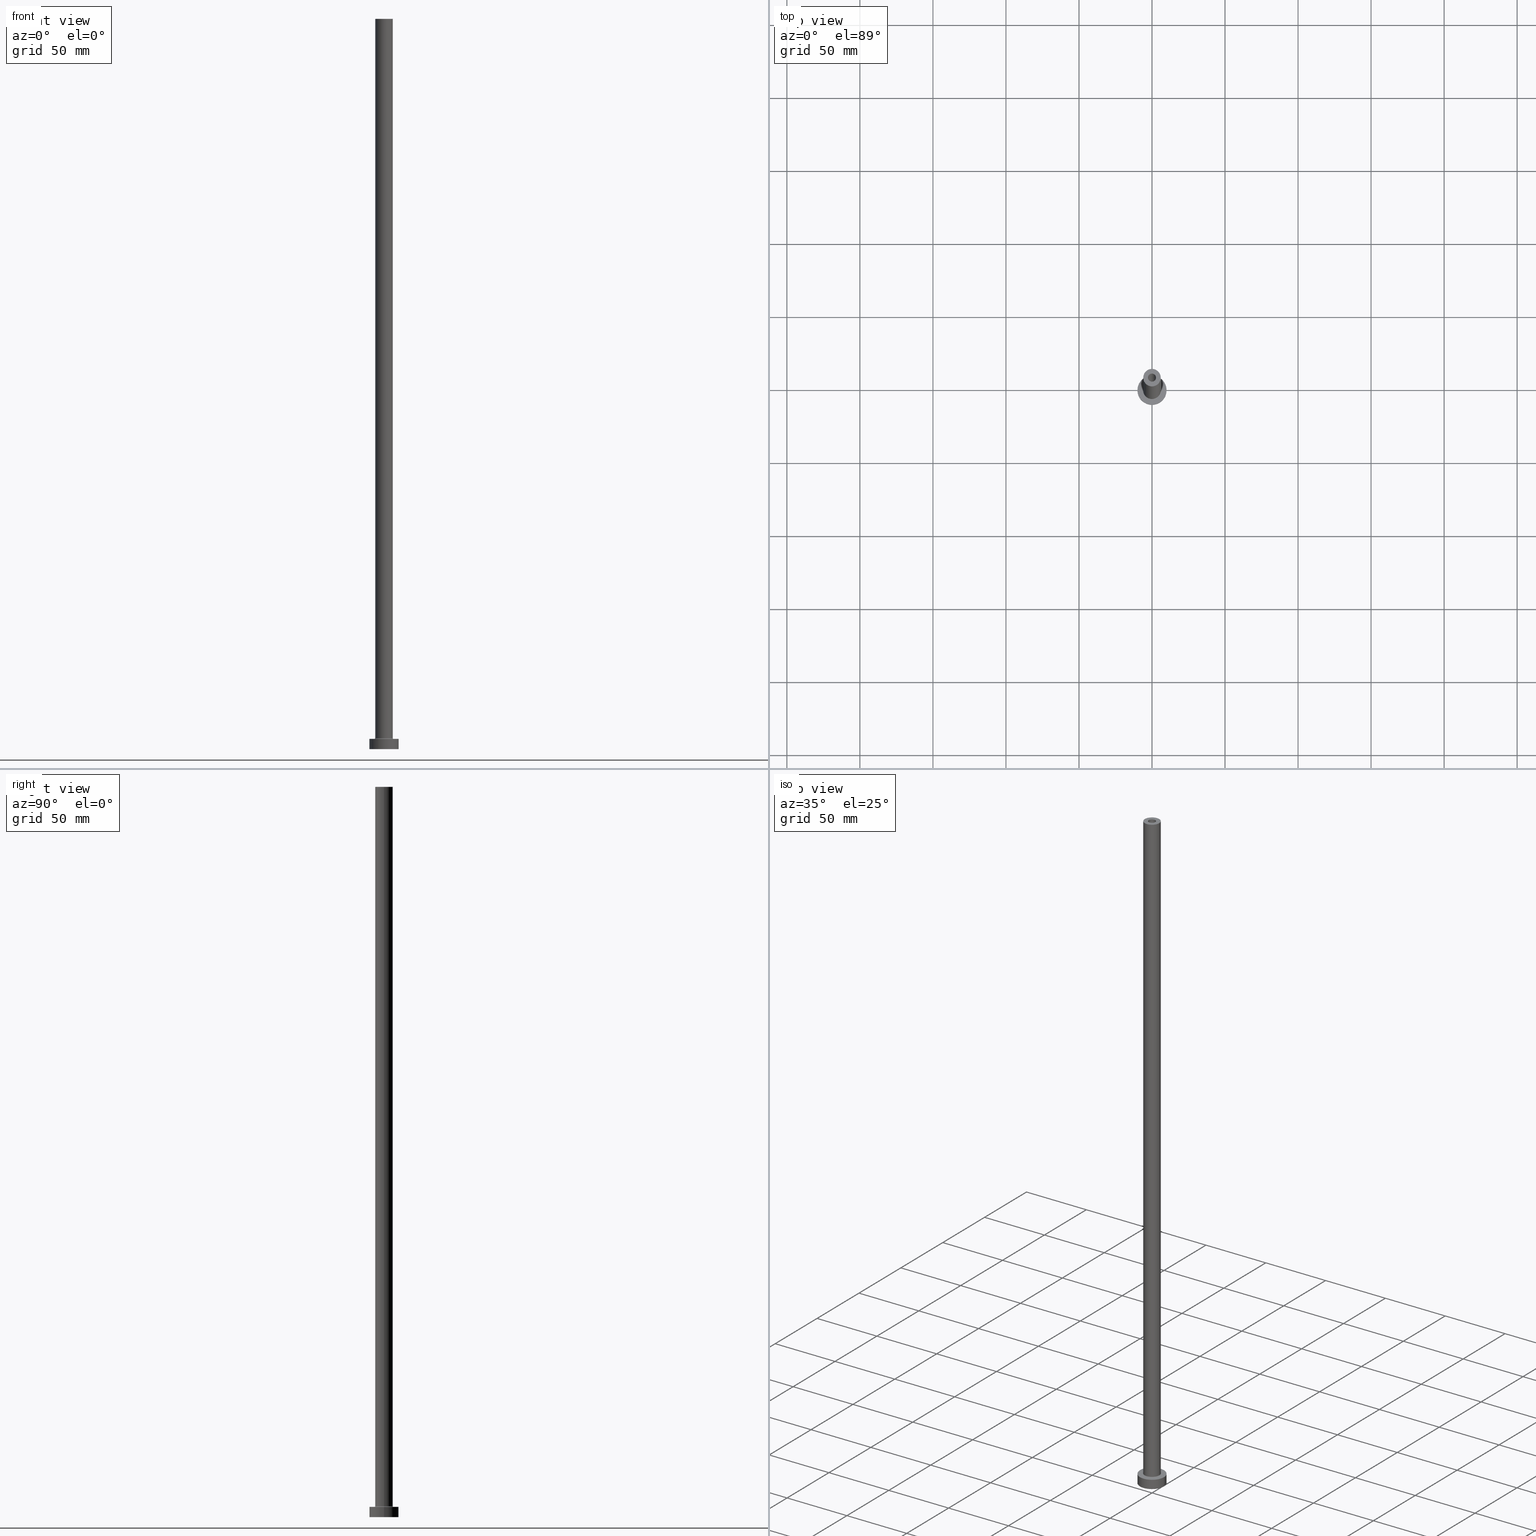
[diagram: canonical four-view strip — front | top / right | iso, engineering-drawing reading convention]
A machine part, canonical four-view strip (front | top / right | iso — engineering-drawing reading convention). The complete STEP part file that produces these views, byte-faithful:
ISO-10303-21;
HEADER;
FILE_DESCRIPTION (( 'STEP AP203' ),
    '1' );
FILE_NAME ('97c2.STEP',
    '2023-02-13T15:53:31',
    ( '' ),
    ( '' ),
    'SwSTEP 2.0',
    'SolidWorks 2019',
    '' );
FILE_SCHEMA (( 'CONFIG_CONTROL_DESIGN' ));
ENDSEC;

DATA;
#1 = CC_DESIGN_PERSON_AND_ORGANIZATION_ASSIGNMENT ( #172, #139, ( #311 ) ) ;
#2 = ORIENTED_EDGE ( 'NONE', *, *, #124, .T. ) ;
#3 = CIRCLE ( 'NONE', #129, 2.750000000000000000 ) ;
#4 = ORIENTED_EDGE ( 'NONE', *, *, #397, .F. ) ;
#5 = APPROVAL_STATUS ( 'not_yet_approved' ) ;
#6 = VERTEX_POINT ( 'NONE', #265 ) ;
#7 = ORIENTED_EDGE ( 'NONE', *, *, #259, .F. ) ;
#8 = AXIS2_PLACEMENT_3D ( 'NONE', #171, #122, #150 ) ;
#9 = VERTEX_POINT ( 'NONE', #407 ) ;
#10 = DIRECTION ( 'NONE',  ( -0.000000000000000000, -0.000000000000000000, -1.000000000000000000 ) ) ;
#11 = ADVANCED_FACE ( 'NONE', ( #92 ), #107, .F. ) ;
#12 = CARTESIAN_POINT ( 'NONE',  ( 6.500000000000000888, 0.000000000000000000, 7.500000000000007105 ) ) ;
#13 = LINE ( 'NONE', #151, #384 ) ;
#14 = DIRECTION ( 'NONE',  ( 0.000000000000000000, 0.000000000000000000, -1.000000000000000000 ) ) ;
#15 = AXIS2_PLACEMENT_3D ( 'NONE', #441, #327, #436 ) ;
#16 = ORIENTED_EDGE ( 'NONE', *, *, #46, .T. ) ;
#17 = DIRECTION ( 'NONE',  ( 1.000000000000000000, 0.000000000000000000, 0.000000000000000000 ) ) ;
#18 = EDGE_CURVE ( 'NONE', #246, #432, #228, .T. ) ;
#19 = PLANE ( 'NONE',  #351 ) ;
#20 = FACE_OUTER_BOUND ( 'NONE', #251, .T. ) ;
#21 = DIRECTION ( 'NONE',  ( -0.000000000000000000, -0.000000000000000000, -1.000000000000000000 ) ) ;
#22 = CYLINDRICAL_SURFACE ( 'NONE', #294, 6.000000000000000888 ) ;
#23 = AXIS2_PLACEMENT_3D ( 'NONE', #235, #312, #272 ) ;
#24 = DIRECTION ( 'NONE',  ( 1.000000000000000000, 0.000000000000000000, 0.000000000000000000 ) ) ;
#25 = CIRCLE ( 'NONE', #8, 6.000000000000000888 ) ;
#26 = CARTESIAN_POINT ( 'NONE',  ( 0.000000000000000000, 0.000000000000000000, 7.000000000000000000 ) ) ;
#27 = PERSON_AND_ORGANIZATION_ROLE ( 'design_owner' ) ;
#28 = FACE_OUTER_BOUND ( 'NONE', #112, .T. ) ;
#29 =( NAMED_UNIT ( * ) SI_UNIT ( $, .STERADIAN. ) SOLID_ANGLE_UNIT ( ) );
#30 = CARTESIAN_POINT ( 'NONE',  ( 0.000000000000000000, 0.000000000000000000, 455.0000000000000000 ) ) ;
#31 = AXIS2_PLACEMENT_3D ( 'NONE', #86, #10, #188 ) ;
#32 = AXIS2_PLACEMENT_3D ( 'NONE', #12, #264, #232 ) ;
#33 = VERTEX_POINT ( 'NONE', #299 ) ;
#34 = EDGE_CURVE ( 'NONE', #9, #6, #323, .T. ) ;
#35 = ADVANCED_BREP_SHAPE_REPRESENTATION ( '97c2', ( #192, #367 ), #449 ) ;
#36 = ORIENTED_EDGE ( 'NONE', *, *, #75, .T. ) ;
#37 = CALENDAR_DATE ( 2023, 13, 2 ) ;
#38 = ORIENTED_EDGE ( 'NONE', *, *, #279, .F. ) ;
#39 = ORIENTED_EDGE ( 'NONE', *, *, #231, .T. ) ;
#40 = LOCAL_TIME ( 16, 53, 31.00000000000000000, #283 ) ;
#41 = ORIENTED_EDGE ( 'NONE', *, *, #259, .T. ) ;
#42 = CALENDAR_DATE ( 2023, 13, 2 ) ;
#43 = ORIENTED_EDGE ( 'NONE', *, *, #131, .F. ) ;
#44 = EDGE_LOOP ( 'NONE', ( #4, #145 ) ) ;
#45 = CARTESIAN_POINT ( 'NONE',  ( 0.000000000000000000, 0.000000000000000000, 7.500000000000007105 ) ) ;
#46 = EDGE_CURVE ( 'NONE', #177, #114, #160, .T. ) ;
#47 = CARTESIAN_POINT ( 'NONE',  ( 2.750000000000000000, 3.367778697655220519E-16, 500.0000000000000000 ) ) ;
#48 = EDGE_LOOP ( 'NONE', ( #253, #154 ) ) ;
#49 = DIRECTION ( 'NONE',  ( -1.000000000000000000, 0.000000000000000000, 0.000000000000000000 ) ) ;
#50 = FACE_BOUND ( 'NONE', #282, .T. ) ;
#51 = CIRCLE ( 'NONE', #309, 2.750000000000000000 ) ;
#52 = EDGE_CURVE ( 'NONE', #6, #9, #118, .T. ) ;
#53 = CARTESIAN_POINT ( 'NONE',  ( -2.750000000000000000, 0.000000000000000000, 455.0000000000000000 ) ) ;
#54 = AXIS2_PLACEMENT_3D ( 'NONE', #227, #233, #158 ) ;
#55 = EDGE_LOOP ( 'NONE', ( #452, #215, #16, #435 ) ) ;
#56 = CARTESIAN_POINT ( 'NONE',  ( 2.899999999999999911, 3.551475717527323339E-16, 455.0000000000000000 ) ) ;
#57 = CARTESIAN_POINT ( 'NONE',  ( 6.000000000000000888, 7.347880794884120722E-16, 500.0000000000000000 ) ) ;
#58 = LINE ( 'NONE', #196, #261 ) ;
#59 = CARTESIAN_POINT ( 'NONE',  ( 0.000000000000000000, 0.000000000000000000, 7.500000000000007105 ) ) ;
#60 = DIRECTION ( 'NONE',  ( 1.000000000000000000, 0.000000000000000000, 0.000000000000000000 ) ) ;
#61 = CIRCLE ( 'NONE', #176, 6.500000000000000888 ) ;
#62 = LINE ( 'NONE', #67, #100 ) ;
#63 = AXIS2_PLACEMENT_3D ( 'NONE', #239, #386, #165 ) ;
#64 = ADVANCED_FACE ( 'NONE', ( #50, #116 ), #19, .T. ) ;
#65 = FACE_BOUND ( 'NONE', #437, .T. ) ;
#66 = APPROVAL_DATE_TIME ( #390, #186 ) ;
#67 = CARTESIAN_POINT ( 'NONE',  ( 2.750000000000000000, 3.367778697655220519E-16, 500.0000000000000000 ) ) ;
#68 = APPROVAL_ROLE ( '' ) ;
#69 = EDGE_CURVE ( 'NONE', #213, #398, #332, .T. ) ;
#70 = AXIS2_PLACEMENT_3D ( 'NONE', #457, #197, #24 ) ;
#71 = ORIENTED_EDGE ( 'NONE', *, *, #52, .T. ) ;
#72 = SHAPE_DEFINITION_REPRESENTATION ( #338, #35 ) ;
#73 = EDGE_LOOP ( 'NONE', ( #178, #289, #394, #210 ) ) ;
#74 = VERTEX_POINT ( 'NONE', #57 ) ;
#75 = EDGE_CURVE ( 'NONE', #98, #391, #13, .T. ) ;
#76 = CC_DESIGN_APPROVAL ( #424, ( #247 ) ) ;
#77 = ORIENTED_EDGE ( 'NONE', *, *, #34, .F. ) ;
#78 = EDGE_LOOP ( 'NONE', ( #38, #278, #2, #395 ) ) ;
#79 = CC_DESIGN_PERSON_AND_ORGANIZATION_ASSIGNMENT ( #347, #138, ( #82 ) ) ;
#80 = CARTESIAN_POINT ( 'NONE',  ( 10.00000000000000000, 1.224646799147353256E-15, 7.000000000000000000 ) ) ;
#81 = APPLICATION_CONTEXT ( 'configuration controlled 3d designs of mechanical parts and assemblies' ) ;
#82 = PRODUCT_DEFINITION_FORMATION_WITH_SPECIFIED_SOURCE ( 'LIBOVOLN�', '', #237, .NOT_KNOWN. ) ;
#83 = CARTESIAN_POINT ( 'NONE',  ( -2.899999999999999911, 0.000000000000000000, 463.2024386617639493 ) ) ;
#84 = CARTESIAN_POINT ( 'NONE',  ( 0.000000000000000000, 0.000000000000000000, 7.500000000000007105 ) ) ;
#85 = LINE ( 'NONE', #83, #200 ) ;
#86 = CARTESIAN_POINT ( 'NONE',  ( 0.000000000000000000, 0.000000000000000000, 7.000000000000000000 ) ) ;
#87 = FACE_BOUND ( 'NONE', #111, .T. ) ;
#88 = DIRECTION ( 'NONE',  ( 0.000000000000000000, 0.000000000000000000, 1.000000000000000000 ) ) ;
#89 = TOROIDAL_SURFACE ( 'NONE', #113, 6.500000000000000888, 0.5000000000000000000 ) ;
#90 = FACE_OUTER_BOUND ( 'NONE', #180, .T. ) ;
#91 = CIRCLE ( 'NONE', #108, 2.899999999999999911 ) ;
#92 = FACE_OUTER_BOUND ( 'NONE', #361, .T. ) ;
#93 = CARTESIAN_POINT ( 'NONE',  ( -10.00000000000000000, 0.000000000000000000, 0.000000000000000000 ) ) ;
#94 = CARTESIAN_POINT ( 'NONE',  ( 2.899999999999999911, 3.551475717527323339E-16, 0.000000000000000000 ) ) ;
#95 = PERSON ( 'NEUR�EN�', 'NEUR�EN�', 'NEUR�EN�', ('NEUR�EN�'), ('NEUR�EN�'), ('NEUR�EN�') ) ;
#96 = EDGE_CURVE ( 'NONE', #6, #246, #126, .T. ) ;
#97 = CYLINDRICAL_SURFACE ( 'NONE', #287, 6.000000000000000888 ) ;
#98 = VERTEX_POINT ( 'NONE', #225 ) ;
#99 =( LENGTH_UNIT ( ) NAMED_UNIT ( * ) SI_UNIT ( .MILLI., .METRE. ) );
#100 = VECTOR ( 'NONE', #461, 1000.000000000000000 ) ;
#101 = DIRECTION ( 'NONE',  ( 1.224646799147353207E-16, 1.000000000000000000, -0.000000000000000000 ) ) ;
#102 = VECTOR ( 'NONE', #413, 1000.000000000000000 ) ;
#103 = PERSON_AND_ORGANIZATION ( #95, #427 ) ;
#104 = DIRECTION ( 'NONE',  ( 1.000000000000000000, 0.000000000000000000, 0.000000000000000000 ) ) ;
#105 = ADVANCED_FACE ( 'NONE', ( #195 ), #121, .F. ) ;
#106 = ORIENTED_EDGE ( 'NONE', *, *, #216, .F. ) ;
#107 = TOROIDAL_SURFACE ( 'NONE', #366, 6.500000000000000888, 0.5000000000000000000 ) ;
#108 = AXIS2_PLACEMENT_3D ( 'NONE', #295, #334, #403 ) ;
#109 = ORIENTED_EDGE ( 'NONE', *, *, #231, .F. ) ;
#110 = EDGE_LOOP ( 'NONE', ( #268, #71 ) ) ;
#111 = EDGE_LOOP ( 'NONE', ( #106, #337 ) ) ;
#112 = EDGE_LOOP ( 'NONE', ( #39, #322 ) ) ;
#113 = AXIS2_PLACEMENT_3D ( 'NONE', #59, #306, #454 ) ;
#114 = VERTEX_POINT ( 'NONE', #376 ) ;
#115 = EDGE_CURVE ( 'NONE', #33, #431, #61, .T. ) ;
#116 = FACE_OUTER_BOUND ( 'NONE', #110, .T. ) ;
#117 = DIRECTION ( 'NONE',  ( 1.000000000000000000, 0.000000000000000000, 0.000000000000000000 ) ) ;
#118 = CIRCLE ( 'NONE', #15, 10.00000000000000000 ) ;
#119 = LOCAL_TIME ( 16, 53, 31.00000000000000000, #460 ) ;
#120 = CARTESIAN_POINT ( 'NONE',  ( -6.500000000000000888, 7.960204194457796463E-16, 7.000000000000002665 ) ) ;
#121 = CYLINDRICAL_SURFACE ( 'NONE', #420, 2.899999999999999911 ) ;
#122 = DIRECTION ( 'NONE',  ( 0.000000000000000000, 0.000000000000000000, 1.000000000000000000 ) ) ;
#123 = DIRECTION ( 'NONE',  ( 0.000000000000000000, 0.000000000000000000, -1.000000000000000000 ) ) ;
#124 = EDGE_CURVE ( 'NONE', #350, #391, #293, .T. ) ;
#125 = DIRECTION ( 'NONE',  ( 0.000000000000000000, 0.000000000000000000, -1.000000000000000000 ) ) ;
#126 = LINE ( 'NONE', #80, #169 ) ;
#127 = AXIS2_PLACEMENT_3D ( 'NONE', #133, #308, #340 ) ;
#128 = FACE_OUTER_BOUND ( 'NONE', #73, .T. ) ;
#129 = AXIS2_PLACEMENT_3D ( 'NONE', #155, #379, #17 ) ;
#130 = PLANE ( 'NONE',  #23 ) ;
#131 = EDGE_CURVE ( 'NONE', #431, #33, #434, .T. ) ;
#132 = APPROVAL_STATUS ( 'not_yet_approved' ) ;
#133 = CARTESIAN_POINT ( 'NONE',  ( 0.000000000000000000, 0.000000000000000000, 0.000000000000000000 ) ) ;
#134 = MECHANICAL_CONTEXT ( 'NONE', #224, 'mechanical' ) ;
#135 = AXIS2_PLACEMENT_3D ( 'NONE', #26, #276, #416 ) ;
#136 = DIRECTION ( 'NONE',  ( -1.000000000000000000, 0.000000000000000000, 0.000000000000000000 ) ) ;
#137 = EDGE_CURVE ( 'NONE', #398, #319, #62, .T. ) ;
#138 = PERSON_AND_ORGANIZATION_ROLE ( 'creator' ) ;
#139 = PERSON_AND_ORGANIZATION_ROLE ( 'classification_officer' ) ;
#140 = AXIS2_PLACEMENT_3D ( 'NONE', #447, #190, #339 ) ;
#141 = ORIENTED_EDGE ( 'NONE', *, *, #216, .T. ) ;
#142 = ADVANCED_FACE ( 'NONE', ( #451 ), #203, .F. ) ;
#143 = ORIENTED_EDGE ( 'NONE', *, *, #405, .T. ) ;
#144 = ORIENTED_EDGE ( 'NONE', *, *, #456, .F. ) ;
#145 = ORIENTED_EDGE ( 'NONE', *, *, #18, .F. ) ;
#146 = ADVANCED_FACE ( 'NONE', ( #448, #201 ), #130, .F. ) ;
#147 = CIRCLE ( 'NONE', #70, 6.000000000000000888 ) ;
#148 = ORIENTED_EDGE ( 'NONE', *, *, #428, .T. ) ;
#149 = DIRECTION ( 'NONE',  ( 1.000000000000000000, 0.000000000000000000, -0.000000000000000000 ) ) ;
#150 = DIRECTION ( 'NONE',  ( 1.000000000000000000, 0.000000000000000000, 0.000000000000000000 ) ) ;
#151 = CARTESIAN_POINT ( 'NONE',  ( -6.000000000000000888, 0.000000000000000000, 500.0000000000000000 ) ) ;
#152 = CC_DESIGN_APPROVAL ( #296, ( #311 ) ) ;
#153 = DIRECTION ( 'NONE',  ( -1.000000000000000000, 0.000000000000000000, 0.000000000000000000 ) ) ;
#154 = ORIENTED_EDGE ( 'NONE', *, *, #179, .T. ) ;
#155 = CARTESIAN_POINT ( 'NONE',  ( 0.000000000000000000, 0.000000000000000000, 455.0000000000000000 ) ) ;
#156 = DIRECTION ( 'NONE',  ( 1.000000000000000000, 0.000000000000000000, 0.000000000000000000 ) ) ;
#157 = PLANE ( 'NONE',  #140 ) ;
#158 = DIRECTION ( 'NONE',  ( 1.000000000000000000, 0.000000000000000000, 0.000000000000000000 ) ) ;
#159 = ADVANCED_FACE ( 'NONE', ( #344 ), #238, .T. ) ;
#160 = CIRCLE ( 'NONE', #54, 2.899999999999999911 ) ;
#161 = DIRECTION ( 'NONE',  ( 0.000000000000000000, 0.000000000000000000, 1.000000000000000000 ) ) ;
#162 = AXIS2_PLACEMENT_3D ( 'NONE', #328, #14, #153 ) ;
#163 = DIRECTION ( 'NONE',  ( 1.000000000000000000, 0.000000000000000000, -0.000000000000000000 ) ) ;
#164 = ORIENTED_EDGE ( 'NONE', *, *, #131, .T. ) ;
#165 = DIRECTION ( 'NONE',  ( 1.000000000000000000, 0.000000000000000000, 0.000000000000000000 ) ) ;
#166 = DIRECTION ( 'NONE',  ( -0.000000000000000000, -0.000000000000000000, -1.000000000000000000 ) ) ;
#167 = APPROVAL_ROLE ( '' ) ;
#168 = FACE_OUTER_BOUND ( 'NONE', #78, .T. ) ;
#169 = VECTOR ( 'NONE', #257, 1000.000000000000000 ) ;
#170 = AXIS2_PLACEMENT_3D ( 'NONE', #383, #101, #241 ) ;
#171 = CARTESIAN_POINT ( 'NONE',  ( 0.000000000000000000, 0.000000000000000000, 7.500000000000007105 ) ) ;
#172 = PERSON_AND_ORGANIZATION ( #95, #427 ) ;
#173 = ORIENTED_EDGE ( 'NONE', *, *, #363, .T. ) ;
#174 = ORIENTED_EDGE ( 'NONE', *, *, #137, .F. ) ;
#175 = ADVANCED_FACE ( 'NONE', ( #65, #28 ), #244, .T. ) ;
#176 = AXIS2_PLACEMENT_3D ( 'NONE', #219, #21, #399 ) ;
#177 = VERTEX_POINT ( 'NONE', #94 ) ;
#178 = ORIENTED_EDGE ( 'NONE', *, *, #69, .T. ) ;
#179 = EDGE_CURVE ( 'NONE', #319, #316, #51, .T. ) ;
#180 = EDGE_LOOP ( 'NONE', ( #250, #109, #36, #41 ) ) ;
#181 = ORIENTED_EDGE ( 'NONE', *, *, #96, .T. ) ;
#182 = VECTOR ( 'NONE', #408, 1000.000000000000000 ) ;
#183 = DIRECTION ( 'NONE',  ( -0.000000000000000000, -0.000000000000000000, -1.000000000000000000 ) ) ;
#184 = CARTESIAN_POINT ( 'NONE',  ( 6.000000000000000888, 7.347880794884120722E-16, 7.500000000000007105 ) ) ;
#185 = EDGE_LOOP ( 'NONE', ( #144, #148, #417, #141 ) ) ;
#186 = APPROVAL ( #243, 'NEUR�EN�' ) ;
#187 = DIRECTION ( 'NONE',  ( -0.000000000000000000, -0.000000000000000000, -1.000000000000000000 ) ) ;
#188 = DIRECTION ( 'NONE',  ( 1.000000000000000000, 0.000000000000000000, 0.000000000000000000 ) ) ;
#189 = LOCAL_TIME ( 16, 53, 31.00000000000000000, #236 ) ;
#190 = DIRECTION ( 'NONE',  ( 0.000000000000000000, 0.000000000000000000, 1.000000000000000000 ) ) ;
#191 = DIRECTION ( 'NONE',  ( 0.000000000000000000, 0.000000000000000000, 1.000000000000000000 ) ) ;
#192 = MANIFOLD_SOLID_BREP ( 'Odebrat vysunut�m4', #317 ) ;
#193 = CYLINDRICAL_SURFACE ( 'NONE', #358, 10.00000000000000000 ) ;
#194 = ADVANCED_FACE ( 'NONE', ( #168 ), #97, .T. ) ;
#195 = FACE_OUTER_BOUND ( 'NONE', #185, .T. ) ;
#196 = CARTESIAN_POINT ( 'NONE',  ( 6.000000000000000888, 7.347880794884120722E-16, 500.0000000000000000 ) ) ;
#197 = DIRECTION ( 'NONE',  ( 0.000000000000000000, 0.000000000000000000, 1.000000000000000000 ) ) ;
#198 = AXIS2_PLACEMENT_3D ( 'NONE', #221, #370, #117 ) ;
#199 = PERSON_AND_ORGANIZATION ( #95, #427 ) ;
#200 = VECTOR ( 'NONE', #267, 1000.000000000000000 ) ;
#201 = FACE_OUTER_BOUND ( 'NONE', #290, .T. ) ;
#202 = PERSON_AND_ORGANIZATION ( #95, #427 ) ;
#203 = CYLINDRICAL_SURFACE ( 'NONE', #357, 2.899999999999999911 ) ;
#204 = CC_DESIGN_DATE_AND_TIME_ASSIGNMENT ( #273, #418, ( #247 ) ) ;
#205 =( NAMED_UNIT ( * ) PLANE_ANGLE_UNIT ( ) SI_UNIT ( $, .RADIAN. ) );
#206 = FACE_OUTER_BOUND ( 'NONE', #249, .T. ) ;
#207 = PERSON_AND_ORGANIZATION ( #95, #427 ) ;
#208 = AXIS2_PLACEMENT_3D ( 'NONE', #378, #191, #410 ) ;
#209 = VECTOR ( 'NONE', #343, 1000.000000000000000 ) ;
#210 = ORIENTED_EDGE ( 'NONE', *, *, #405, .F. ) ;
#211 = LINE ( 'NONE', #280, #209 ) ;
#212 = CC_DESIGN_PERSON_AND_ORGANIZATION_ASSIGNMENT ( #199, #271, ( #247 ) ) ;
#213 = VERTEX_POINT ( 'NONE', #381 ) ;
#214 = ORIENTED_EDGE ( 'NONE', *, *, #52, .F. ) ;
#215 = ORIENTED_EDGE ( 'NONE', *, *, #456, .T. ) ;
#216 = EDGE_CURVE ( 'NONE', #114, #177, #375, .T. ) ;
#217 = ORIENTED_EDGE ( 'NONE', *, *, #397, .T. ) ;
#218 = ORIENTED_EDGE ( 'NONE', *, *, #242, .T. ) ;
#219 = CARTESIAN_POINT ( 'NONE',  ( 0.000000000000000000, 0.000000000000000000, 7.000000000000000000 ) ) ;
#220 = DIRECTION ( 'NONE',  ( -0.000000000000000000, -0.000000000000000000, -1.000000000000000000 ) ) ;
#221 = CARTESIAN_POINT ( 'NONE',  ( 0.000000000000000000, 0.000000000000000000, 500.0000000000000000 ) ) ;
#222 = ADVANCED_FACE ( 'NONE', ( #206 ), #89, .F. ) ;
#223 = CARTESIAN_POINT ( 'NONE',  ( 0.000000000000000000, 0.000000000000000000, 500.0000000000000000 ) ) ;
#224 = APPLICATION_CONTEXT ( 'configuration controlled 3d designs of mechanical parts and assemblies' ) ;
#225 = CARTESIAN_POINT ( 'NONE',  ( -6.000000000000000888, 0.000000000000000000, 500.0000000000000000 ) ) ;
#226 = CARTESIAN_POINT ( 'NONE',  ( -2.750000000000000000, 0.000000000000000000, 500.0000000000000000 ) ) ;
#227 = CARTESIAN_POINT ( 'NONE',  ( 0.000000000000000000, 0.000000000000000000, 0.000000000000000000 ) ) ;
#228 = CIRCLE ( 'NONE', #208, 10.00000000000000000 ) ;
#229 = DESIGN_CONTEXT ( 'detailed design', #81, 'design' ) ;
#230 = AXIS2_PLACEMENT_3D ( 'NONE', #444, #125, #234 ) ;
#231 = EDGE_CURVE ( 'NONE', #98, #74, #147, .T. ) ;
#232 = DIRECTION ( 'NONE',  ( 0.000000000000000000, 0.000000000000000000, -1.000000000000000000 ) ) ;
#233 = DIRECTION ( 'NONE',  ( -0.000000000000000000, -0.000000000000000000, -1.000000000000000000 ) ) ;
#234 = DIRECTION ( 'NONE',  ( -1.000000000000000000, 0.000000000000000000, 0.000000000000000000 ) ) ;
#235 = CARTESIAN_POINT ( 'NONE',  ( 0.000000000000000000, 0.000000000000000000, 455.0000000000000000 ) ) ;
#236 = COORDINATED_UNIVERSAL_TIME_OFFSET ( 1, 0, .AHEAD. ) ;
#237 = PRODUCT ( '97c2', '97c2', '', ( #134 ) ) ;
#238 = CYLINDRICAL_SURFACE ( 'NONE', #135, 10.00000000000000000 ) ;
#239 = CARTESIAN_POINT ( 'NONE',  ( 0.000000000000000000, 0.000000000000000000, 500.0000000000000000 ) ) ;
#240 = APPROVAL_PERSON_ORGANIZATION ( #355, #296, #365 ) ;
#241 = DIRECTION ( 'NONE',  ( -1.000000000000000000, 1.224646799147351482E-16, 0.000000000000000000 ) ) ;
#242 = EDGE_CURVE ( 'NONE', #391, #431, #324, .T. ) ;
#243 = APPROVAL_STATUS ( 'not_yet_approved' ) ;
#244 = PLANE ( 'NONE',  #458 ) ;
#245 = APPLICATION_PROTOCOL_DEFINITION ( 'international standard', 'config_control_design', 1994, #224 ) ;
#246 = VERTEX_POINT ( 'NONE', #423 ) ;
#247 = PRODUCT_DEFINITION ( 'NEZN�M�', '', #82, #229 ) ;
#248 = CIRCLE ( 'NONE', #63, 2.750000000000000000 ) ;
#249 = EDGE_LOOP ( 'NONE', ( #341, #354, #297, #43 ) ) ;
#250 = ORIENTED_EDGE ( 'NONE', *, *, #439, .F. ) ;
#251 = EDGE_LOOP ( 'NONE', ( #174, #255, #143, #372 ) ) ;
#252 = AXIS2_PLACEMENT_3D ( 'NONE', #336, #161, #269 ) ;
#253 = ORIENTED_EDGE ( 'NONE', *, *, #433, .T. ) ;
#254 = EDGE_CURVE ( 'NONE', #321, #325, #459, .T. ) ;
#255 = ORIENTED_EDGE ( 'NONE', *, *, #446, .T. ) ;
#256 = DATE_AND_TIME ( #42, #40 ) ;
#257 = DIRECTION ( 'NONE',  ( -0.000000000000000000, -0.000000000000000000, -1.000000000000000000 ) ) ;
#258 = DIRECTION ( 'NONE',  ( 1.000000000000000000, 0.000000000000000000, 0.000000000000000000 ) ) ;
#259 = EDGE_CURVE ( 'NONE', #391, #350, #25, .T. ) ;
#260 = DIRECTION ( 'NONE',  ( 0.000000000000000000, 0.000000000000000000, 1.000000000000000000 ) ) ;
#261 = VECTOR ( 'NONE', #302, 1000.000000000000000 ) ;
#262 = DIRECTION ( 'NONE',  ( 0.000000000000000000, 0.000000000000000000, 1.000000000000000000 ) ) ;
#263 = DIRECTION ( 'NONE',  ( -1.000000000000000000, 0.000000000000000000, 0.000000000000000000 ) ) ;
#264 = DIRECTION ( 'NONE',  ( 0.000000000000000000, -1.000000000000000000, 0.000000000000000000 ) ) ;
#265 = CARTESIAN_POINT ( 'NONE',  ( 10.00000000000000000, 1.224646799147353256E-15, 7.000000000000000000 ) ) ;
#266 = EDGE_CURVE ( 'NONE', #321, #114, #85, .T. ) ;
#267 = DIRECTION ( 'NONE',  ( 0.000000000000000000, 0.000000000000000000, -1.000000000000000000 ) ) ;
#268 = ORIENTED_EDGE ( 'NONE', *, *, #34, .T. ) ;
#269 = DIRECTION ( 'NONE',  ( 1.000000000000000000, 0.000000000000000000, 0.000000000000000000 ) ) ;
#270 = DIRECTION ( 'NONE',  ( 0.000000000000000000, 0.000000000000000000, 1.000000000000000000 ) ) ;
#271 = PERSON_AND_ORGANIZATION_ROLE ( 'creator' ) ;
#272 = DIRECTION ( 'NONE',  ( 1.000000000000000000, 0.000000000000000000, -0.000000000000000000 ) ) ;
#273 = DATE_AND_TIME ( #453, #119 ) ;
#274 = ADVANCED_FACE ( 'NONE', ( #90 ), #22, .T. ) ;
#275 = CARTESIAN_POINT ( 'NONE',  ( 0.000000000000000000, 0.000000000000000000, 500.0000000000000000 ) ) ;
#276 = DIRECTION ( 'NONE',  ( -0.000000000000000000, -0.000000000000000000, -1.000000000000000000 ) ) ;
#277 = PERSON_AND_ORGANIZATION_ROLE ( 'design_supplier' ) ;
#278 = ORIENTED_EDGE ( 'NONE', *, *, #439, .T. ) ;
#279 = EDGE_CURVE ( 'NONE', #74, #98, #440, .T. ) ;
#280 = CARTESIAN_POINT ( 'NONE',  ( 2.899999999999999911, 3.551475717527323339E-16, 463.2024386617639493 ) ) ;
#281 = APPROVAL_PERSON_ORGANIZATION ( #422, #424, #167 ) ;
#282 = EDGE_LOOP ( 'NONE', ( #396, #164 ) ) ;
#283 = COORDINATED_UNIVERSAL_TIME_OFFSET ( 1, 0, .AHEAD. ) ;
#284 = ORIENTED_EDGE ( 'NONE', *, *, #428, .F. ) ;
#285 = EDGE_LOOP ( 'NONE', ( #214, #181, #393, #356 ) ) ;
#286 = DATE_AND_TIME ( #382, #189 ) ;
#287 = AXIS2_PLACEMENT_3D ( 'NONE', #346, #166, #136 ) ;
#288 = CIRCLE ( 'NONE', #252, 10.00000000000000000 ) ;
#289 = ORIENTED_EDGE ( 'NONE', *, *, #137, .T. ) ;
#290 = EDGE_LOOP ( 'NONE', ( #329, #284 ) ) ;
#291 = DIRECTION ( 'NONE',  ( 1.000000000000000000, 0.000000000000000000, 0.000000000000000000 ) ) ;
#292 = DIRECTION ( 'NONE',  ( -1.000000000000000000, 0.000000000000000000, 0.000000000000000000 ) ) ;
#293 = CIRCLE ( 'NONE', #426, 6.000000000000000888 ) ;
#294 = AXIS2_PLACEMENT_3D ( 'NONE', #400, #220, #49 ) ;
#295 = CARTESIAN_POINT ( 'NONE',  ( 0.000000000000000000, 0.000000000000000000, 455.0000000000000000 ) ) ;
#296 = APPROVAL ( #5, 'NEUR�EN�' ) ;
#297 = ORIENTED_EDGE ( 'NONE', *, *, #313, .T. ) ;
#298 = CYLINDRICAL_SURFACE ( 'NONE', #230, 2.750000000000000000 ) ;
#299 = CARTESIAN_POINT ( 'NONE',  ( 6.500000000000000888, 0.000000000000000000, 7.000000000000002665 ) ) ;
#300 = FACE_OUTER_BOUND ( 'NONE', #364, .T. ) ;
#301 = DIRECTION ( 'NONE',  ( 0.000000000000000000, 0.000000000000000000, -1.000000000000000000 ) ) ;
#302 = DIRECTION ( 'NONE',  ( -0.000000000000000000, -0.000000000000000000, -1.000000000000000000 ) ) ;
#303 = DIRECTION ( 'NONE',  ( 0.000000000000000000, 0.000000000000000000, 1.000000000000000000 ) ) ;
#304 = ORIENTED_EDGE ( 'NONE', *, *, #69, .F. ) ;
#305 = CC_DESIGN_PERSON_AND_ORGANIZATION_ASSIGNMENT ( #207, #277, ( #82 ) ) ;
#306 = DIRECTION ( 'NONE',  ( 0.000000000000000000, 0.000000000000000000, 1.000000000000000000 ) ) ;
#307 = COORDINATED_UNIVERSAL_TIME_OFFSET ( 1, 0, .AHEAD. ) ;
#308 = DIRECTION ( 'NONE',  ( -0.000000000000000000, -0.000000000000000000, -1.000000000000000000 ) ) ;
#309 = AXIS2_PLACEMENT_3D ( 'NONE', #387, #303, #104 ) ;
#310 = DATE_AND_TIME ( #37, #318 ) ;
#311 = SECURITY_CLASSIFICATION ( '', '', #353 ) ;
#312 = DIRECTION ( 'NONE',  ( 0.000000000000000000, 0.000000000000000000, 1.000000000000000000 ) ) ;
#313 = EDGE_CURVE ( 'NONE', #350, #33, #352, .T. ) ;
#314 = ORIENTED_EDGE ( 'NONE', *, *, #446, .F. ) ;
#315 = CALENDAR_DATE ( 2023, 13, 2 ) ;
#316 = VERTEX_POINT ( 'NONE', #53 ) ;
#317 = CLOSED_SHELL ( 'NONE', ( #320, #142, #11, #194, #159, #348, #64, #373, #274, #175, #222, #105, #146, #412 ) ) ;
#318 = LOCAL_TIME ( 16, 53, 31.00000000000000000, #307 ) ;
#319 = VERTEX_POINT ( 'NONE', #371 ) ;
#320 = ADVANCED_FACE ( 'NONE', ( #128 ), #298, .F. ) ;
#321 = VERTEX_POINT ( 'NONE', #377 ) ;
#322 = ORIENTED_EDGE ( 'NONE', *, *, #279, .T. ) ;
#323 = CIRCLE ( 'NONE', #409, 10.00000000000000000 ) ;
#324 = CIRCLE ( 'NONE', #170, 0.5000000000000004441 ) ;
#325 = VERTEX_POINT ( 'NONE', #56 ) ;
#326 = CC_DESIGN_PERSON_AND_ORGANIZATION_ASSIGNMENT ( #202, #27, ( #237 ) ) ;
#327 = DIRECTION ( 'NONE',  ( 0.000000000000000000, 0.000000000000000000, 1.000000000000000000 ) ) ;
#328 = CARTESIAN_POINT ( 'NONE',  ( 0.000000000000000000, 0.000000000000000000, 500.0000000000000000 ) ) ;
#329 = ORIENTED_EDGE ( 'NONE', *, *, #254, .F. ) ;
#330 = CARTESIAN_POINT ( 'NONE',  ( -10.00000000000000000, 0.000000000000000000, 7.000000000000000000 ) ) ;
#331 = CARTESIAN_POINT ( 'NONE',  ( 0.000000000000000000, 0.000000000000000000, 463.2024386617639493 ) ) ;
#332 = CIRCLE ( 'NONE', #198, 2.750000000000000000 ) ;
#333 = AXIS2_PLACEMENT_3D ( 'NONE', #30, #389, #349 ) ;
#334 = DIRECTION ( 'NONE',  ( 0.000000000000000000, 0.000000000000000000, 1.000000000000000000 ) ) ;
#335 = DIRECTION ( 'NONE',  ( 1.000000000000000000, 0.000000000000000000, 0.000000000000000000 ) ) ;
#336 = CARTESIAN_POINT ( 'NONE',  ( 0.000000000000000000, 0.000000000000000000, 0.000000000000000000 ) ) ;
#337 = ORIENTED_EDGE ( 'NONE', *, *, #46, .F. ) ;
#338 = PRODUCT_DEFINITION_SHAPE ( 'NONE', 'NONE',  #247 ) ;
#339 = DIRECTION ( 'NONE',  ( 1.000000000000000000, 0.000000000000000000, -0.000000000000000000 ) ) ;
#340 = DIRECTION ( 'NONE',  ( 1.000000000000000000, 0.000000000000000000, 0.000000000000000000 ) ) ;
#341 = ORIENTED_EDGE ( 'NONE', *, *, #242, .F. ) ;
#342 = APPROVAL_PERSON_ORGANIZATION ( #103, #186, #68 ) ;
#343 = DIRECTION ( 'NONE',  ( 0.000000000000000000, 0.000000000000000000, -1.000000000000000000 ) ) ;
#344 = FACE_OUTER_BOUND ( 'NONE', #285, .T. ) ;
#345 = APPLICATION_PROTOCOL_DEFINITION ( 'international standard', 'config_control_design', 1994, #81 ) ;
#346 = CARTESIAN_POINT ( 'NONE',  ( 0.000000000000000000, 0.000000000000000000, 500.0000000000000000 ) ) ;
#347 = PERSON_AND_ORGANIZATION ( #95, #427 ) ;
#348 = ADVANCED_FACE ( 'NONE', ( #300 ), #193, .T. ) ;
#349 = DIRECTION ( 'NONE',  ( 1.000000000000000000, 0.000000000000000000, 0.000000000000000000 ) ) ;
#350 = VERTEX_POINT ( 'NONE', #184 ) ;
#351 = AXIS2_PLACEMENT_3D ( 'NONE', #445, #443, #149 ) ;
#352 = CIRCLE ( 'NONE', #32, 0.5000000000000004441 ) ;
#353 = SECURITY_CLASSIFICATION_LEVEL ( 'unclassified' ) ;
#354 = ORIENTED_EDGE ( 'NONE', *, *, #124, .F. ) ;
#355 = PERSON_AND_ORGANIZATION ( #95, #427 ) ;
#356 = ORIENTED_EDGE ( 'NONE', *, *, #363, .F. ) ;
#357 = AXIS2_PLACEMENT_3D ( 'NONE', #414, #301, #419 ) ;
#358 = AXIS2_PLACEMENT_3D ( 'NONE', #450, #187, #292 ) ;
#359 = ORIENTED_EDGE ( 'NONE', *, *, #96, .F. ) ;
#360 = APPROVAL_DATE_TIME ( #256, #296 ) ;
#361 = EDGE_LOOP ( 'NONE', ( #7, #218, #429, #402 ) ) ;
#362 = DATE_TIME_ROLE ( 'classification_date' ) ;
#363 = EDGE_CURVE ( 'NONE', #9, #432, #442, .T. ) ;
#364 = EDGE_LOOP ( 'NONE', ( #359, #77, #173, #217 ) ) ;
#365 = APPROVAL_ROLE ( '' ) ;
#366 = AXIS2_PLACEMENT_3D ( 'NONE', #84, #260, #335 ) ;
#367 = AXIS2_PLACEMENT_3D ( 'NONE', #392, #415, #60 ) ;
#368 = CARTESIAN_POINT ( 'NONE',  ( 0.000000000000000000, 0.000000000000000000, 7.000000000000000000 ) ) ;
#369 = CARTESIAN_POINT ( 'NONE',  ( -6.000000000000000888, 0.000000000000000000, 7.500000000000007105 ) ) ;
#370 = DIRECTION ( 'NONE',  ( 0.000000000000000000, 0.000000000000000000, 1.000000000000000000 ) ) ;
#371 = CARTESIAN_POINT ( 'NONE',  ( 2.750000000000000000, 3.367778697655220519E-16, 455.0000000000000000 ) ) ;
#372 = ORIENTED_EDGE ( 'NONE', *, *, #179, .F. ) ;
#373 = ADVANCED_FACE ( 'NONE', ( #87, #406 ), #157, .F. ) ;
#374 = LINE ( 'NONE', #226, #102 ) ;
#375 = CIRCLE ( 'NONE', #127, 2.899999999999999911 ) ;
#376 = CARTESIAN_POINT ( 'NONE',  ( -2.899999999999999911, 0.000000000000000000, 0.000000000000000000 ) ) ;
#377 = CARTESIAN_POINT ( 'NONE',  ( -2.899999999999999911, 0.000000000000000000, 455.0000000000000000 ) ) ;
#378 = CARTESIAN_POINT ( 'NONE',  ( 0.000000000000000000, 0.000000000000000000, 0.000000000000000000 ) ) ;
#379 = DIRECTION ( 'NONE',  ( 0.000000000000000000, 0.000000000000000000, 1.000000000000000000 ) ) ;
#380 = PRODUCT_RELATED_PRODUCT_CATEGORY ( 'detail', '', ( #237 ) ) ;
#381 = CARTESIAN_POINT ( 'NONE',  ( -2.750000000000000000, 0.000000000000000000, 500.0000000000000000 ) ) ;
#382 = CALENDAR_DATE ( 2023, 13, 2 ) ;
#383 = CARTESIAN_POINT ( 'NONE',  ( -6.500000000000000888, 7.960204194457796463E-16, 7.500000000000007105 ) ) ;
#384 = VECTOR ( 'NONE', #183, 1000.000000000000000 ) ;
#385 = CC_DESIGN_APPROVAL ( #186, ( #82 ) ) ;
#386 = DIRECTION ( 'NONE',  ( 0.000000000000000000, 0.000000000000000000, 1.000000000000000000 ) ) ;
#387 = CARTESIAN_POINT ( 'NONE',  ( 0.000000000000000000, 0.000000000000000000, 455.0000000000000000 ) ) ;
#388 = CC_DESIGN_DATE_AND_TIME_ASSIGNMENT ( #286, #362, ( #311 ) ) ;
#389 = DIRECTION ( 'NONE',  ( 0.000000000000000000, 0.000000000000000000, 1.000000000000000000 ) ) ;
#390 = DATE_AND_TIME ( #315, #401 ) ;
#391 = VERTEX_POINT ( 'NONE', #369 ) ;
#392 = CARTESIAN_POINT ( 'NONE',  ( 0.000000000000000000, 0.000000000000000000, 0.000000000000000000 ) ) ;
#393 = ORIENTED_EDGE ( 'NONE', *, *, #18, .T. ) ;
#394 = ORIENTED_EDGE ( 'NONE', *, *, #433, .F. ) ;
#395 = ORIENTED_EDGE ( 'NONE', *, *, #75, .F. ) ;
#396 = ORIENTED_EDGE ( 'NONE', *, *, #115, .T. ) ;
#397 = EDGE_CURVE ( 'NONE', #432, #246, #288, .T. ) ;
#398 = VERTEX_POINT ( 'NONE', #47 ) ;
#399 = DIRECTION ( 'NONE',  ( 1.000000000000000000, 0.000000000000000000, 0.000000000000000000 ) ) ;
#400 = CARTESIAN_POINT ( 'NONE',  ( 0.000000000000000000, 0.000000000000000000, 500.0000000000000000 ) ) ;
#401 = LOCAL_TIME ( 16, 53, 31.00000000000000000, #425 ) ;
#402 = ORIENTED_EDGE ( 'NONE', *, *, #313, .F. ) ;
#403 = DIRECTION ( 'NONE',  ( 1.000000000000000000, 0.000000000000000000, 0.000000000000000000 ) ) ;
#404 = DIRECTION ( 'NONE',  ( 0.000000000000000000, 0.000000000000000000, 1.000000000000000000 ) ) ;
#405 = EDGE_CURVE ( 'NONE', #213, #316, #374, .T. ) ;
#406 = FACE_OUTER_BOUND ( 'NONE', #44, .T. ) ;
#407 = CARTESIAN_POINT ( 'NONE',  ( -10.00000000000000000, 0.000000000000000000, 7.000000000000000000 ) ) ;
#408 = DIRECTION ( 'NONE',  ( -0.000000000000000000, -0.000000000000000000, -1.000000000000000000 ) ) ;
#409 = AXIS2_PLACEMENT_3D ( 'NONE', #368, #88, #156 ) ;
#410 = DIRECTION ( 'NONE',  ( 1.000000000000000000, 0.000000000000000000, 0.000000000000000000 ) ) ;
#411 = AXIS2_PLACEMENT_3D ( 'NONE', #223, #262, #258 ) ;
#412 = ADVANCED_FACE ( 'NONE', ( #20 ), #438, .F. ) ;
#413 = DIRECTION ( 'NONE',  ( 0.000000000000000000, 0.000000000000000000, -1.000000000000000000 ) ) ;
#414 = CARTESIAN_POINT ( 'NONE',  ( 0.000000000000000000, 0.000000000000000000, 463.2024386617639493 ) ) ;
#415 = DIRECTION ( 'NONE',  ( 0.000000000000000000, 0.000000000000000000, 1.000000000000000000 ) ) ;
#416 = DIRECTION ( 'NONE',  ( -1.000000000000000000, 0.000000000000000000, 0.000000000000000000 ) ) ;
#417 = ORIENTED_EDGE ( 'NONE', *, *, #266, .T. ) ;
#418 = DATE_TIME_ROLE ( 'creation_date' ) ;
#419 = DIRECTION ( 'NONE',  ( -1.000000000000000000, 0.000000000000000000, 0.000000000000000000 ) ) ;
#420 = AXIS2_PLACEMENT_3D ( 'NONE', #331, #123, #263 ) ;
#421 = CC_DESIGN_SECURITY_CLASSIFICATION ( #311, ( #82 ) ) ;
#422 = PERSON_AND_ORGANIZATION ( #95, #427 ) ;
#423 = CARTESIAN_POINT ( 'NONE',  ( 10.00000000000000000, 1.224646799147353256E-15, 0.000000000000000000 ) ) ;
#424 = APPROVAL ( #132, 'NEUR�EN�' ) ;
#425 = COORDINATED_UNIVERSAL_TIME_OFFSET ( 1, 0, .AHEAD. ) ;
#426 = AXIS2_PLACEMENT_3D ( 'NONE', #45, #404, #291 ) ;
#427 = ORGANIZATION ( 'NEUR�EN�', 'NEUR�EN�', '' ) ;
#428 = EDGE_CURVE ( 'NONE', #325, #321, #91, .T. ) ;
#429 = ORIENTED_EDGE ( 'NONE', *, *, #115, .F. ) ;
#430 = UNCERTAINTY_MEASURE_WITH_UNIT (LENGTH_MEASURE( 1.000000000000000082E-05 ), #99, 'distance_accuracy_value', 'NONE');
#431 = VERTEX_POINT ( 'NONE', #120 ) ;
#432 = VERTEX_POINT ( 'NONE', #93 ) ;
#433 = EDGE_CURVE ( 'NONE', #316, #319, #3, .T. ) ;
#434 = CIRCLE ( 'NONE', #31, 6.500000000000000888 ) ;
#435 = ORIENTED_EDGE ( 'NONE', *, *, #266, .F. ) ;
#436 = DIRECTION ( 'NONE',  ( 1.000000000000000000, 0.000000000000000000, 0.000000000000000000 ) ) ;
#437 = EDGE_LOOP ( 'NONE', ( #304, #314 ) ) ;
#438 = CYLINDRICAL_SURFACE ( 'NONE', #162, 2.750000000000000000 ) ;
#439 = EDGE_CURVE ( 'NONE', #74, #350, #58, .T. ) ;
#440 = CIRCLE ( 'NONE', #411, 6.000000000000000888 ) ;
#441 = CARTESIAN_POINT ( 'NONE',  ( 0.000000000000000000, 0.000000000000000000, 7.000000000000000000 ) ) ;
#442 = LINE ( 'NONE', #330, #182 ) ;
#443 = DIRECTION ( 'NONE',  ( 0.000000000000000000, 0.000000000000000000, 1.000000000000000000 ) ) ;
#444 = CARTESIAN_POINT ( 'NONE',  ( 0.000000000000000000, 0.000000000000000000, 500.0000000000000000 ) ) ;
#445 = CARTESIAN_POINT ( 'NONE',  ( 0.000000000000000000, 0.000000000000000000, 7.000000000000000000 ) ) ;
#446 = EDGE_CURVE ( 'NONE', #398, #213, #248, .T. ) ;
#447 = CARTESIAN_POINT ( 'NONE',  ( 0.000000000000000000, 0.000000000000000000, 0.000000000000000000 ) ) ;
#448 = FACE_BOUND ( 'NONE', #48, .T. ) ;
#449 =( GEOMETRIC_REPRESENTATION_CONTEXT ( 3 ) GLOBAL_UNCERTAINTY_ASSIGNED_CONTEXT ( ( #430 ) ) GLOBAL_UNIT_ASSIGNED_CONTEXT ( ( #99, #205, #29 ) ) REPRESENTATION_CONTEXT ( 'NONE', 'WORKASPACE' ) );
#450 = CARTESIAN_POINT ( 'NONE',  ( 0.000000000000000000, 0.000000000000000000, 7.000000000000000000 ) ) ;
#451 = FACE_OUTER_BOUND ( 'NONE', #55, .T. ) ;
#452 = ORIENTED_EDGE ( 'NONE', *, *, #254, .T. ) ;
#453 = CALENDAR_DATE ( 2023, 13, 2 ) ;
#454 = DIRECTION ( 'NONE',  ( 1.000000000000000000, 0.000000000000000000, 0.000000000000000000 ) ) ;
#455 = APPROVAL_DATE_TIME ( #310, #424 ) ;
#456 = EDGE_CURVE ( 'NONE', #325, #177, #211, .T. ) ;
#457 = CARTESIAN_POINT ( 'NONE',  ( 0.000000000000000000, 0.000000000000000000, 500.0000000000000000 ) ) ;
#458 = AXIS2_PLACEMENT_3D ( 'NONE', #275, #270, #163 ) ;
#459 = CIRCLE ( 'NONE', #333, 2.899999999999999911 ) ;
#460 = COORDINATED_UNIVERSAL_TIME_OFFSET ( 1, 0, .AHEAD. ) ;
#461 = DIRECTION ( 'NONE',  ( 0.000000000000000000, 0.000000000000000000, -1.000000000000000000 ) ) ;
ENDSEC;
END-ISO-10303-21;
